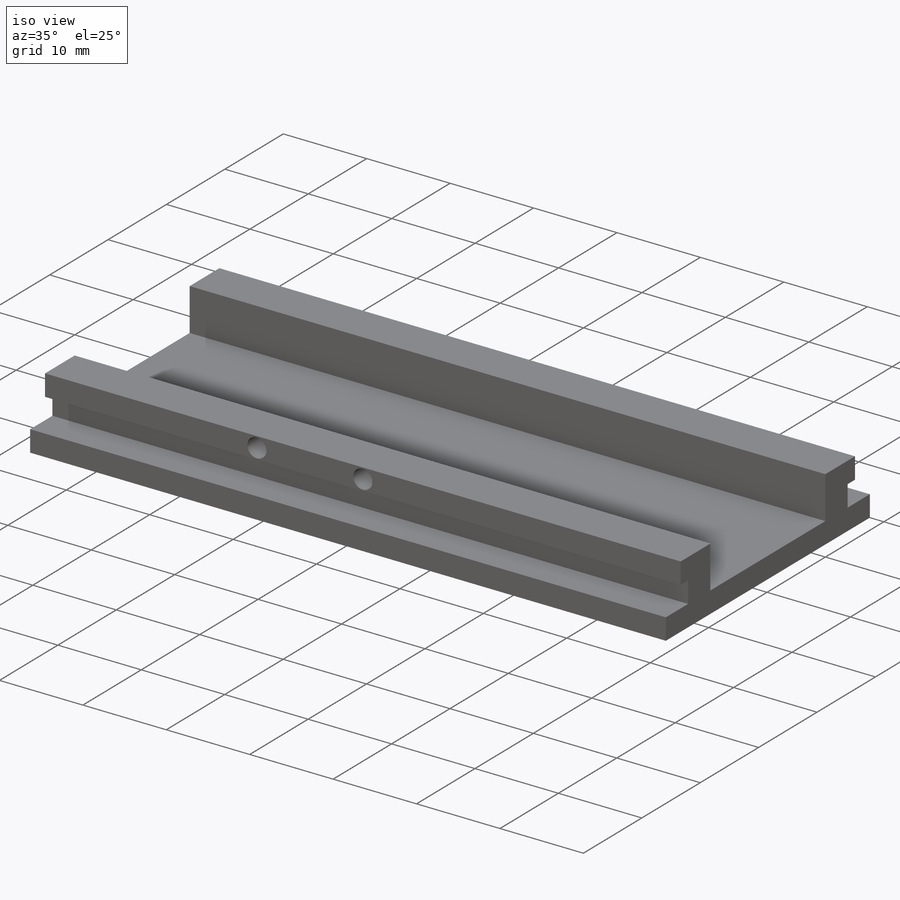
[diagram: iso view]
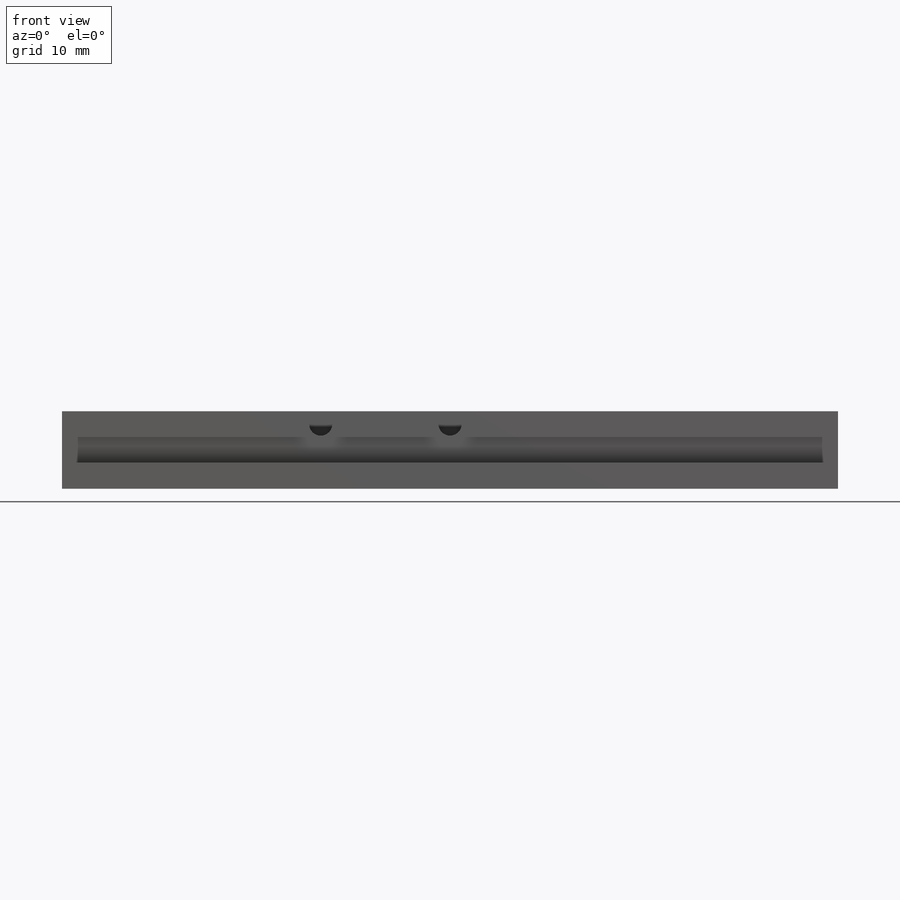
[diagram: front view]
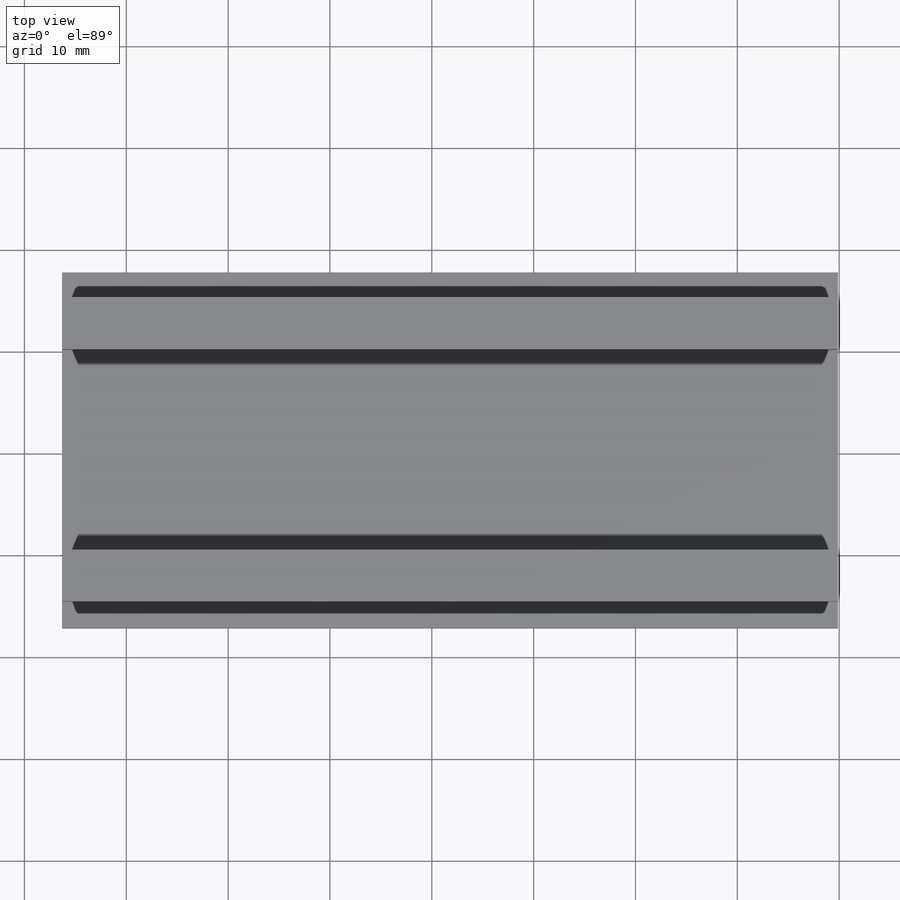
[diagram: top view]
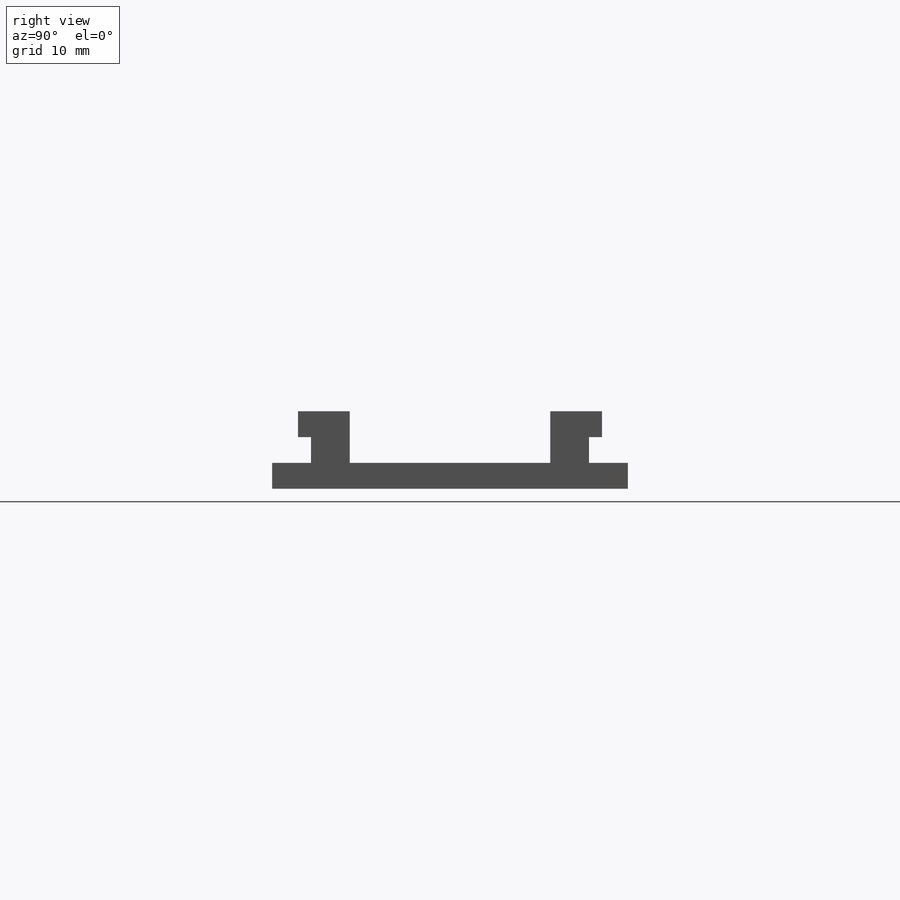
[diagram: right view]
SOLIDWORKS PART (.sldprt)
format: sldprt  version: not decoded by parser v0  size: 338,432 bytes
history: native  units: mm
features: sketch x6, extrude x6, material x1, plane x1 (+13 scaffold rows collapsed)
feature tree (27):
  scaffold x13  (default folders/planes/origin — collapsed)
  material  "Material <not specified>"
  sketch  "Sketch1"  dims[D1=34.925mm D2=76.2mm]
  extrude  "Boss-Extrude1"  Depth=2.54mm
  sketch  "Sketch3"  dims[D1=3.81mm D2=3.81mm D3=3.81mm D4=3.81mm]
  extrude  "Boss-Extrude3"  Depth=5.08mm
  plane  "Plane1"
  sketch  "Sketch6"  dims[D1=2.54mm D2=2.54mm]
  sketch  "Sketch7"  dims[D1=2.54mm]
  extrude  "Boss-Extrude4"  Depth=1.27mm
  extrude  "Boss-Extrude5"  Depth=1.27mm
  sketch  "Sketch8"
  extrude  "Boss-Extrude6"  Depth=1.27mm
  sketch  "Sketch9"
  extrude  "Boss-Extrude7"  Depth=1.27mm
decode coverage: 10 of 12 modeling features carry decoded parameters
note: suppression state not decoded; provenance and decode notes live in map.json
